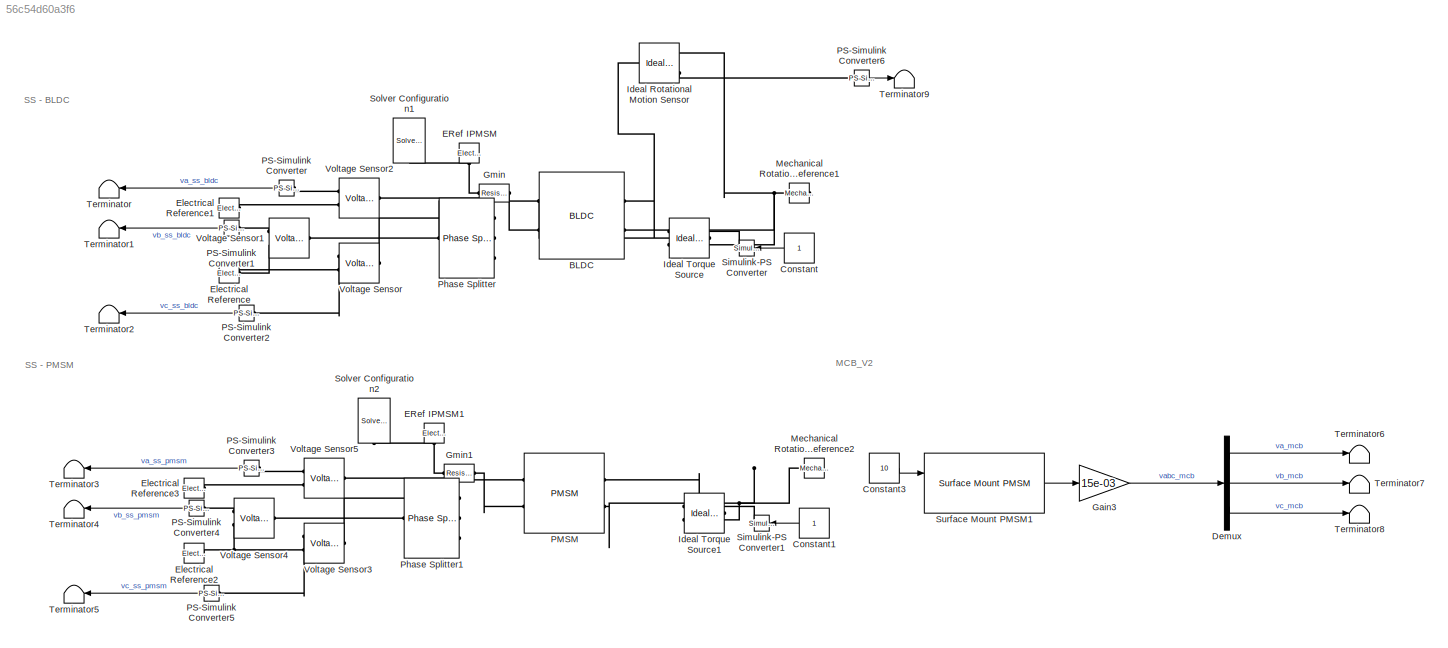
MODEL slx_56c54d60a3f6
KIND model
CONFIG AbsTol = auto
CONFIG EnableMultiTasking = off
CONFIG FixedStep = auto
CONFIG MaxStep = auto
CONFIG MinStep = auto
CONFIG RelTol = 1e-3
CONFIG SampleTimeConstraint = Unconstrained
CONFIG SolverName = VariableStepAuto
CONFIG StartTime = 0.0
CONFIG StopTime = 1
BLOCK [Reference] BLDC  REF=ee_lib/Electromechanical/Permanent Magnet/BLDC
  Ports = [0, 0, 0, 0, 0, 2, 2]
  SourceBlock = ee_lib/Electromechanical/Permanent Magnet/BLDC
  SourceProductBaseCode = PS
  SourceType = BLDC
BLOCK [Constant] Constant
  NameLocation = top
BLOCK [Constant] Constant1
  NameLocation = top
BLOCK [Constant] Constant3
  Value = 10
BLOCK [Demux] Demux
  Outputs = 3
  Ports = [1, 3]
BLOCK [Reference] ERef IPMSM  REF=fl_lib/Electrical/Electrical Elements/Electrical Reference
  NameLocation = left
  Ports = [0, 0, 0, 0, 0, 1]
  SourceBlock = fl_lib/Electrical/Electrical Elements/Electrical Reference
  SourceProductBaseCode = SS
  SourceType = Electrical Reference
BLOCK [Reference] ERef IPMSM1  REF=fl_lib/Electrical/Electrical Elements/Electrical Reference
  NameLocation = left
  Ports = [0, 0, 0, 0, 0, 1]
  SourceBlock = fl_lib/Electrical/Electrical Elements/Electrical Reference
  SourceProductBaseCode = SS
  SourceType = Electrical Reference
BLOCK [Reference] Electrical Reference  REF=fl_lib/Electrical/Electrical Elements/Electrical Reference
  Ports = [0, 0, 0, 0, 0, 1]
  SourceBlock = fl_lib/Electrical/Electrical Elements/Electrical Reference
  SourceProductBaseCode = SS
  SourceType = Electrical Reference
BLOCK [Reference] Electrical Reference1  REF=fl_lib/Electrical/Electrical Elements/Electrical Reference
  Ports = [0, 0, 0, 0, 0, 1]
  SourceBlock = fl_lib/Electrical/Electrical Elements/Electrical Reference
  SourceProductBaseCode = SS
  SourceType = Electrical Reference
BLOCK [Reference] Electrical Reference2  REF=fl_lib/Electrical/Electrical Elements/Electrical Reference
  Ports = [0, 0, 0, 0, 0, 1]
  SourceBlock = fl_lib/Electrical/Electrical Elements/Electrical Reference
  SourceProductBaseCode = SS
  SourceType = Electrical Reference
BLOCK [Reference] Electrical Reference3  REF=fl_lib/Electrical/Electrical Elements/Electrical Reference
  Ports = [0, 0, 0, 0, 0, 1]
  SourceBlock = fl_lib/Electrical/Electrical Elements/Electrical Reference
  SourceProductBaseCode = SS
  SourceType = Electrical Reference
BLOCK [Gain] Gain3
  Gain = 15e-03
BLOCK [Reference] Gmin  REF=fl_lib/Electrical/Electrical Elements/Resistor
  Ports = [0, 0, 0, 0, 0, 1, 1]
  SourceBlock = fl_lib/Electrical/Electrical Elements/Resistor
  SourceProductBaseCode = SS
  SourceType = Resistor
BLOCK [Reference] Gmin1  REF=fl_lib/Electrical/Electrical Elements/Resistor
  Ports = [0, 0, 0, 0, 0, 1, 1]
  SourceBlock = fl_lib/Electrical/Electrical Elements/Resistor
  SourceProductBaseCode = SS
  SourceType = Resistor
BLOCK [Reference] Ideal Rotational Motion Sensor  REF=fl_lib/Mechanical/Mechanical Sensors/Ideal Rotational
Motion Sensor
  Ports = [0, 0, 0, 0, 0, 1, 3]
  SourceBlock = fl_lib/Mechanical/Mechanical Sensors/Ideal Rotational\nMotion Sensor
  SourceProductBaseCode = SS
  SourceType = Ideal Rotational\nMotion Sensor
BLOCK [Reference] Ideal Torque Source  REF=fl_lib/Mechanical/Mechanical Sources/Ideal Torque Source
  NameLocation = top
  Ports = [0, 0, 0, 0, 0, 1, 2]
  SourceBlock = fl_lib/Mechanical/Mechanical Sources/Ideal Torque Source
  SourceProductBaseCode = SS
  SourceType = Ideal Torque Source
BLOCK [Reference] Ideal Torque Source1  REF=fl_lib/Mechanical/Mechanical Sources/Ideal Torque Source
  NameLocation = top
  Ports = [0, 0, 0, 0, 0, 1, 2]
  SourceBlock = fl_lib/Mechanical/Mechanical Sources/Ideal Torque Source
  SourceProductBaseCode = SS
  SourceType = Ideal Torque Source
BLOCK [Reference] Mechanical Rotational Reference1  REF=fl_lib/Mechanical/Rotational Elements/Mechanical
Rotational Reference
  NameLocation = top
  Ports = [0, 0, 0, 0, 0, 1]
  SourceBlock = fl_lib/Mechanical/Rotational Elements/Mechanical\nRotational Reference
  SourceProductBaseCode = SS
  SourceType = Mechanical\nRotational Reference
BLOCK [Reference] Mechanical Rotational Reference2  REF=fl_lib/Mechanical/Rotational Elements/Mechanical
Rotational Reference
  NameLocation = top
  Ports = [0, 0, 0, 0, 0, 1]
  SourceBlock = fl_lib/Mechanical/Rotational Elements/Mechanical\nRotational Reference
  SourceProductBaseCode = SS
  SourceType = Mechanical\nRotational Reference
BLOCK [Reference] PMSM  REF=ee_lib/Electromechanical/Permanent Magnet/PMSM
  Ports = [0, 0, 0, 0, 0, 2, 2]
  SourceBlock = ee_lib/Electromechanical/Permanent Magnet/PMSM
  SourceProductBaseCode = PS
  SourceType = PMSM
BLOCK [Reference] PS-Simulink Converter  REF=nesl_utility/PS-Simulink
Converter
  NameLocation = top
  Ports = [0, 1, 0, 0, 0, 1]
  SourceBlock = nesl_utility/PS-Simulink\nConverter
  SourceProductBaseCode = PW,SS
  SourceType = PS-Simulink\nConverter
BLOCK [Reference] PS-Simulink Converter1  REF=nesl_utility/PS-Simulink
Converter
  NameLocation = top
  Ports = [0, 1, 0, 0, 0, 1]
  SourceBlock = nesl_utility/PS-Simulink\nConverter
  SourceProductBaseCode = PW,SS
  SourceType = PS-Simulink\nConverter
BLOCK [Reference] PS-Simulink Converter2  REF=nesl_utility/PS-Simulink
Converter
  NameLocation = top
  Ports = [0, 1, 0, 0, 0, 1]
  SourceBlock = nesl_utility/PS-Simulink\nConverter
  SourceProductBaseCode = PW,SS
  SourceType = PS-Simulink\nConverter
BLOCK [Reference] PS-Simulink Converter3  REF=nesl_utility/PS-Simulink
Converter
  NameLocation = top
  Ports = [0, 1, 0, 0, 0, 1]
  SourceBlock = nesl_utility/PS-Simulink\nConverter
  SourceProductBaseCode = PW,SS
  SourceType = PS-Simulink\nConverter
BLOCK [Reference] PS-Simulink Converter4  REF=nesl_utility/PS-Simulink
Converter
  NameLocation = top
  Ports = [0, 1, 0, 0, 0, 1]
  SourceBlock = nesl_utility/PS-Simulink\nConverter
  SourceProductBaseCode = PW,SS
  SourceType = PS-Simulink\nConverter
BLOCK [Reference] PS-Simulink Converter5  REF=nesl_utility/PS-Simulink
Converter
  NameLocation = top
  Ports = [0, 1, 0, 0, 0, 1]
  SourceBlock = nesl_utility/PS-Simulink\nConverter
  SourceProductBaseCode = PW,SS
  SourceType = PS-Simulink\nConverter
BLOCK [Reference] PS-Simulink Converter6  REF=nesl_utility/PS-Simulink
Converter
  Ports = [0, 1, 0, 0, 0, 1]
  SourceBlock = nesl_utility/PS-Simulink\nConverter
  SourceProductBaseCode = PW,SS
  SourceType = PS-Simulink\nConverter
BLOCK [Reference] Phase Splitter  REF=ee_lib/Connectors &
References/Phase Splitter
  NameLocation = top
  Ports = [0, 0, 0, 0, 0, 1, 3]
  SourceBlock = ee_lib/Connectors &\nReferences/Phase Splitter
  SourceProductBaseCode = PS
  SourceType = Phase Splitter
BLOCK [Reference] Phase Splitter1  REF=ee_lib/Connectors &
References/Phase Splitter
  NameLocation = top
  Ports = [0, 0, 0, 0, 0, 1, 3]
  SourceBlock = ee_lib/Connectors &\nReferences/Phase Splitter
  SourceProductBaseCode = PS
  SourceType = Phase Splitter
BLOCK [Reference] Simulink-PS Converter  REF=nesl_utility/Simulink-PS
Converter
  NameLocation = top
  Ports = [1, 0, 0, 0, 0, 0, 1]
  SourceBlock = nesl_utility/Simulink-PS\nConverter
  SourceProductBaseCode = PW,SS
  SourceType = Simulink-PS\nConverter
BLOCK [Reference] Simulink-PS Converter1  REF=nesl_utility/Simulink-PS
Converter
  NameLocation = top
  Ports = [1, 0, 0, 0, 0, 0, 1]
  SourceBlock = nesl_utility/Simulink-PS\nConverter
  SourceProductBaseCode = PW,SS
  SourceType = Simulink-PS\nConverter
BLOCK [Reference] Solver Configuration1  REF=nesl_utility/Solver
Configuration
  NameLocation = left
  Ports = [0, 0, 0, 0, 0, 0, 1]
  SourceBlock = nesl_utility/Solver\nConfiguration
  SourceProductBaseCode = PW,SS
  SourceType = Solver\nConfiguration
BLOCK [Reference] Solver Configuration2  REF=nesl_utility/Solver
Configuration
  NameLocation = left
  Ports = [0, 0, 0, 0, 0, 0, 1]
  SourceBlock = nesl_utility/Solver\nConfiguration
  SourceProductBaseCode = PW,SS
  SourceType = Solver\nConfiguration
BLOCK [Reference] Surface Mount PMSM1  REF=autolibpmsmexterior/Surface Mount PMSM
  Ports = [2, 3]
  SourceBlock = autolibpmsmexterior/Surface Mount PMSM
  SourceProductBaseCode = PW,DR,MT,UV,VE
  SourceType = Surface Mount PMSM
BLOCK [Terminator] Terminator
  NameLocation = top
BLOCK [Terminator] Terminator1
  NameLocation = top
BLOCK [Terminator] Terminator2
  NameLocation = top
BLOCK [Terminator] Terminator3
  NameLocation = top
BLOCK [Terminator] Terminator4
  NameLocation = top
BLOCK [Terminator] Terminator5
  NameLocation = top
BLOCK [Terminator] Terminator6
BLOCK [Terminator] Terminator7
BLOCK [Terminator] Terminator8
BLOCK [Terminator] Terminator9
BLOCK [Reference] Voltage Sensor  REF=fl_lib/Electrical/Electrical Sensors/Voltage Sensor
  Ports = [0, 0, 0, 0, 0, 1, 2]
  SourceBlock = fl_lib/Electrical/Electrical Sensors/Voltage Sensor
  SourceProductBaseCode = SS
  SourceType = Voltage Sensor
BLOCK [Reference] Voltage Sensor1  REF=fl_lib/Electrical/Electrical Sensors/Voltage Sensor
  Ports = [0, 0, 0, 0, 0, 1, 2]
  SourceBlock = fl_lib/Electrical/Electrical Sensors/Voltage Sensor
  SourceProductBaseCode = SS
  SourceType = Voltage Sensor
BLOCK [Reference] Voltage Sensor2  REF=fl_lib/Electrical/Electrical Sensors/Voltage Sensor
  Ports = [0, 0, 0, 0, 0, 1, 2]
  SourceBlock = fl_lib/Electrical/Electrical Sensors/Voltage Sensor
  SourceProductBaseCode = SS
  SourceType = Voltage Sensor
BLOCK [Reference] Voltage Sensor3  REF=fl_lib/Electrical/Electrical Sensors/Voltage Sensor
  Ports = [0, 0, 0, 0, 0, 1, 2]
  SourceBlock = fl_lib/Electrical/Electrical Sensors/Voltage Sensor
  SourceProductBaseCode = SS
  SourceType = Voltage Sensor
BLOCK [Reference] Voltage Sensor4  REF=fl_lib/Electrical/Electrical Sensors/Voltage Sensor
  Ports = [0, 0, 0, 0, 0, 1, 2]
  SourceBlock = fl_lib/Electrical/Electrical Sensors/Voltage Sensor
  SourceProductBaseCode = SS
  SourceType = Voltage Sensor
BLOCK [Reference] Voltage Sensor5  REF=fl_lib/Electrical/Electrical Sensors/Voltage Sensor
  Ports = [0, 0, 0, 0, 0, 1, 2]
  SourceBlock = fl_lib/Electrical/Electrical Sensors/Voltage Sensor
  SourceProductBaseCode = SS
  SourceType = Voltage Sensor
ANNOTATION (root): MCB_V2
ANNOTATION (root): SS - BLDC
ANNOTATION (root): SS - PMSM
LINE Constant1:1 -> Simulink-PS Converter1:1
LINE Constant3:1 -> Surface Mount PMSM1:1
LINE Constant:1 -> Simulink-PS Converter:1
LINE Demux:1 -> Terminator6:1
LINE Demux:2 -> Terminator7:1
LINE Demux:3 -> Terminator8:1
LINE Gain3:1 -> Demux:1
LINE PS-Simulink Converter1:1 -> Terminator1:1
LINE PS-Simulink Converter2:1 -> Terminator2:1
LINE PS-Simulink Converter3:1 -> Terminator3:1
LINE PS-Simulink Converter4:1 -> Terminator4:1
LINE PS-Simulink Converter5:1 -> Terminator5:1
LINE PS-Simulink Converter6:1 -> Terminator9:1
LINE PS-Simulink Converter:1 -> Terminator:1
LINE Surface Mount PMSM1:2 -> Gain3:1
PLINE BLDC:LConn1 -- Phase Splitter:LConn1
PLINE BLDC:LConn2 -- Gmin:RConn1
PNET net1: BLDC:RConn1 -- Ideal Rotational Motion Sensor:LConn1 -- Ideal Torque Source:LConn1
PNET net2: BLDC:RConn2 -- Ideal Rotational Motion Sensor:RConn1 -- Ideal Torque Source:RConn2 -- Mechanical Rotational Reference1:LConn1
PNET net3: ERef IPMSM1:LConn1 -- Gmin1:LConn1 -- Solver Configuration2:RConn1
PNET net4: ERef IPMSM:LConn1 -- Gmin:LConn1 -- Solver Configuration1:RConn1
PLINE Electrical Reference1:LConn1 -- Voltage Sensor2:RConn2
PNET net5: Electrical Reference2:LConn1 -- Voltage Sensor3:RConn2 -- Voltage Sensor4:RConn2
PLINE Electrical Reference3:LConn1 -- Voltage Sensor5:RConn2
PNET net6: Electrical Reference:LConn1 -- Voltage Sensor1:RConn2 -- Voltage Sensor:RConn2
PLINE Gmin1:RConn1 -- PMSM:LConn2
PLINE Ideal Rotational Motion Sensor:RConn3 -- PS-Simulink Converter6:LConn1
PLINE Ideal Torque Source1:LConn1 -- PMSM:RConn1
PLINE Ideal Torque Source1:RConn1 -- Simulink-PS Converter1:RConn1
PNET net7: Ideal Torque Source1:RConn2 -- Mechanical Rotational Reference2:LConn1 -- PMSM:RConn2
PLINE Ideal Torque Source:RConn1 -- Simulink-PS Converter:RConn1
PLINE PMSM:LConn1 -- Phase Splitter1:LConn1
PLINE PS-Simulink Converter1:LConn1 -- Voltage Sensor1:RConn1
PLINE PS-Simulink Converter2:LConn1 -- Voltage Sensor:RConn1
PLINE PS-Simulink Converter3:LConn1 -- Voltage Sensor5:RConn1
PLINE PS-Simulink Converter4:LConn1 -- Voltage Sensor4:RConn1
PLINE PS-Simulink Converter5:LConn1 -- Voltage Sensor3:RConn1
PLINE PS-Simulink Converter:LConn1 -- Voltage Sensor2:RConn1
PLINE Phase Splitter1:RConn1 -- Voltage Sensor3:LConn1
PLINE Phase Splitter1:RConn2 -- Voltage Sensor4:LConn1
PLINE Phase Splitter1:RConn3 -- Voltage Sensor5:LConn1
PLINE Phase Splitter:RConn1 -- Voltage Sensor:LConn1
PLINE Phase Splitter:RConn2 -- Voltage Sensor1:LConn1
PLINE Phase Splitter:RConn3 -- Voltage Sensor2:LConn1
note: PNET lines group multi-terminal physical nets as a canonical sorted terminal list (undirected conserving connections); 2-terminal nets keep the pairwise PLINE form
